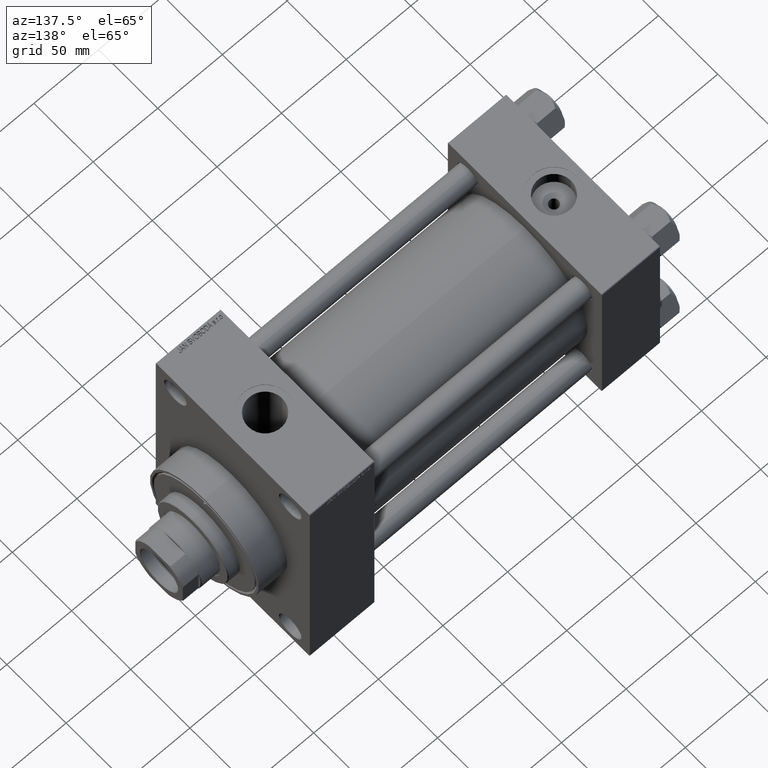
[diagram: clean part render]
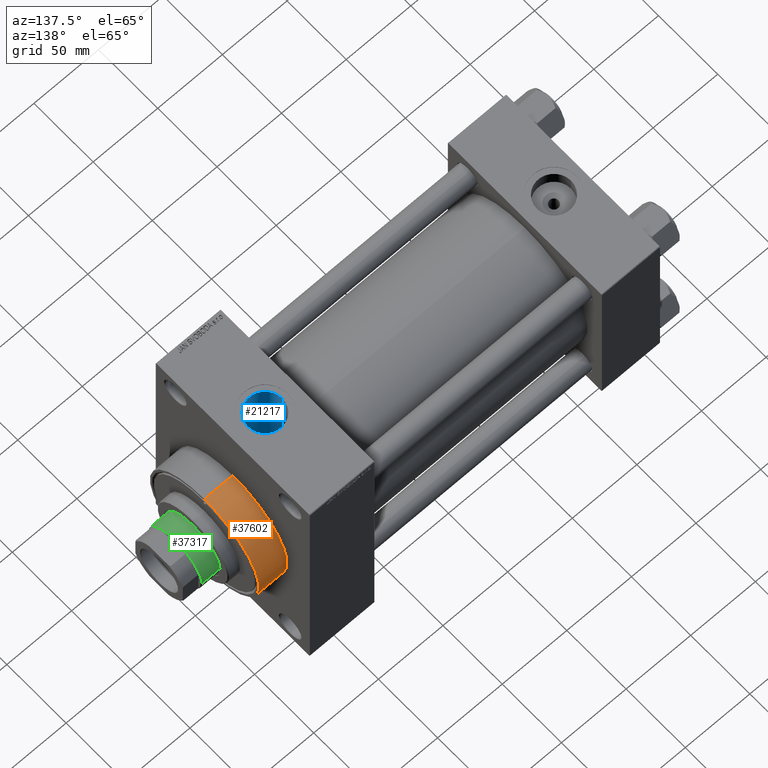
[diagram: same view with three faces highlighted in distinct colors, each labeled with its STEP entity id]
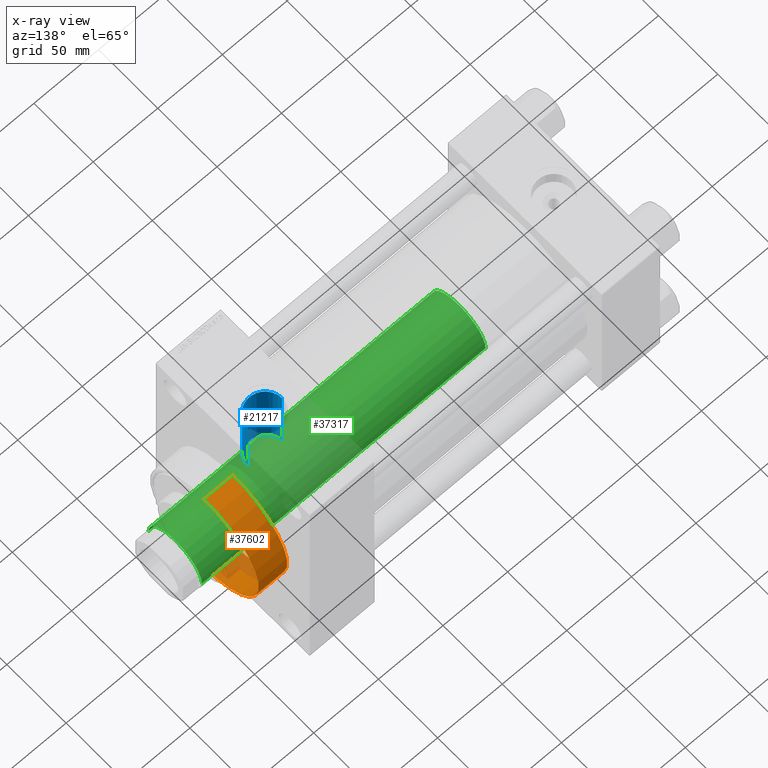
[diagram: x-ray of the same camera — body ghosted, the three highlighted faces saturated]
A machine part, auxiliary view with three faces highlighted in distinct colors.
The next image is the same camera in x-ray (body ghosted, the three faces saturated) — at least one of them is partly hidden behind the body in this view.
Their STEP definitions:

[orange] entity #37602 — the highlighted cylindrical surface (partial cylindrical patch) has radius 46 mm, axis along (-1, -0, -0).
#417 = VECTOR ( 'NONE', #38811, 1000.000000000000000 ) ;
#1079 = CARTESIAN_POINT ( 'NONE',  ( 293.0000000000000000, 0.000000000000000000, 46.00000000000000000 ) ) ;
#1939 = AXIS2_PLACEMENT_3D ( 'NONE', #6727, #14230, #10604 ) ;
#2532 = ORIENTED_EDGE ( 'NONE', *, *, #40158, .T. ) ;
#2699 = CARTESIAN_POINT ( 'NONE',  ( 293.0000000000000000, 5.633375276077824704E-15, -46.00000000000000000 ) ) ;
#2766 = AXIS2_PLACEMENT_3D ( 'NONE', #40722, #40959, #29585 ) ;
#6727 = CARTESIAN_POINT ( 'NONE',  ( 293.0000000000000000, 0.000000000000000000, 0.000000000000000000 ) ) ;
#8022 = EDGE_CURVE ( 'NONE', #31095, #12960, #8111, .T. ) ;
#8111 = LINE ( 'NONE', #1079, #38322 ) ;
#9341 = EDGE_CURVE ( 'NONE', #16402, #43832, #9979, .T. ) ;
#9979 = LINE ( 'NONE', #2699, #417 ) ;
#10604 = DIRECTION ( 'NONE',  ( 0.000000000000000000, 0.000000000000000000, 1.000000000000000000 ) ) ;
#12960 = VERTEX_POINT ( 'NONE', #32870 ) ;
#13008 = ORIENTED_EDGE ( 'NONE', *, *, #27832, .F. ) ;
#14230 = DIRECTION ( 'NONE',  ( -1.000000000000000000, -0.000000000000000000, -0.000000000000000000 ) ) ;
#14411 = DIRECTION ( 'NONE',  ( 1.000000000000000000, 0.000000000000000000, 0.000000000000000000 ) ) ;
#16402 = VERTEX_POINT ( 'NONE', #26064 ) ;
#16772 = CARTESIAN_POINT ( 'NONE',  ( 293.0000000000000000, 0.000000000000000000, 46.00000000000000000 ) ) ;
#17180 = CIRCLE ( 'NONE', #38820, 46.00000000000000000 ) ;
#25579 = DIRECTION ( 'NONE',  ( 0.000000000000000000, 0.000000000000000000, -1.000000000000000000 ) ) ;
#26064 = CARTESIAN_POINT ( 'NONE',  ( 293.0000000000000000, 5.633375276077824704E-15, -46.00000000000000000 ) ) ;
#27596 = ORIENTED_EDGE ( 'NONE', *, *, #9341, .T. ) ;
#27832 = EDGE_CURVE ( 'NONE', #16402, #31095, #17180, .T. ) ;
#29585 = DIRECTION ( 'NONE',  ( 0.000000000000000000, 0.000000000000000000, -1.000000000000000000 ) ) ;
#29643 = ORIENTED_EDGE ( 'NONE', *, *, #8022, .F. ) ;
#29741 = CYLINDRICAL_SURFACE ( 'NONE', #1939, 46.00000000000000000 ) ;
#29868 = CIRCLE ( 'NONE', #2766, 46.00000000000000000 ) ;
#31095 = VERTEX_POINT ( 'NONE', #16772 ) ;
#32870 = CARTESIAN_POINT ( 'NONE',  ( 270.9999999999999432, 0.000000000000000000, 46.00000000000000000 ) ) ;
#36478 = CARTESIAN_POINT ( 'NONE',  ( 270.9999999999999432, 5.633375276077824704E-15, -46.00000000000000000 ) ) ;
#37602 = ADVANCED_FACE ( 'NONE', ( #44499 ), #29741, .T. ) ;
#38322 = VECTOR ( 'NONE', #45645, 1000.000000000000000 ) ;
#38811 = DIRECTION ( 'NONE',  ( -1.000000000000000000, -0.000000000000000000, -0.000000000000000000 ) ) ;
#38820 = AXIS2_PLACEMENT_3D ( 'NONE', #44189, #14411, #25579 ) ;
#40158 = EDGE_CURVE ( 'NONE', #43832, #12960, #29868, .T. ) ;
#40722 = CARTESIAN_POINT ( 'NONE',  ( 270.9999999999999432, 0.000000000000000000, 0.000000000000000000 ) ) ;
#40959 = DIRECTION ( 'NONE',  ( 1.000000000000000000, 0.000000000000000000, 0.000000000000000000 ) ) ;
#43347 = EDGE_LOOP ( 'NONE', ( #13008, #27596, #2532, #29643 ) ) ;
#43832 = VERTEX_POINT ( 'NONE', #36478 ) ;
#44189 = CARTESIAN_POINT ( 'NONE',  ( 293.0000000000000000, 0.000000000000000000, 0.000000000000000000 ) ) ;
#44499 = FACE_OUTER_BOUND ( 'NONE', #43347, .T. ) ;
#45645 = DIRECTION ( 'NONE',  ( -1.000000000000000000, -0.000000000000000000, -0.000000000000000000 ) ) ;

[blue] entity #21217 — the highlighted cylindrical surface (edge-blend (fillet) strip) has radius 13.22 mm, axis along (0, 0, -1).
#1 = CARTESIAN_POINT ( 'NONE',  ( 258.9325276923766523, -2.832175481623198543, 42.66183901135580925 ) ) ;
#108 = LINE ( 'NONE', #43531, #28411 ) ;
#769 = CARTESIAN_POINT ( 'NONE',  ( 247.7273020000270947, -13.11672920664986108, 35.66454747468237940 ) ) ;
#867 = CARTESIAN_POINT ( 'NONE',  ( 246.0000000000000000, 0.000000000000000000, 117.7999999999999545 ) ) ;
#911 = VERTEX_POINT ( 'NONE', #46916 ) ;
#1658 = DIRECTION ( 'NONE',  ( -0.000000000000000000, -0.000000000000000000, -1.000000000000000000 ) ) ;
#1843 = VECTOR ( 'NONE', #19423, 1000.000000000000000 ) ;
#3588 = CARTESIAN_POINT ( 'NONE',  ( 249.7399999999999523, -12.67993690836038212, 35.82204907595320975 ) ) ;
#3628 = CARTESIAN_POINT ( 'NONE',  ( 259.2200000000000273, -0.3557163794469079265, 42.75000000000001421 ) ) ;
#3897 = EDGE_CURVE ( 'NONE', #25655, #911, #21442, .T. ) ;
#4278 = EDGE_CURVE ( 'NONE', #43410, #26917, #18879, .T. ) ;
#4399 = CARTESIAN_POINT ( 'NONE',  ( 249.7399999999999523, -12.67993690836038212, 35.82204907595320975 ) ) ;
#4808 = DIRECTION ( 'NONE',  ( 0.000000000000000000, 0.000000000000000000, -1.000000000000000000 ) ) ;
#5351 = CARTESIAN_POINT ( 'NONE',  ( 237.6581883585390358, -10.26839900491646596, 36.58771021444269422 ) ) ;
#5441 = ORIENTED_EDGE ( 'NONE', *, *, #3897, .T. ) ;
#5587 = CARTESIAN_POINT ( 'NONE',  ( 243.1213861529209339, -12.91299555985390413, 35.73883275200963539 ) ) ;
#5831 = CARTESIAN_POINT ( 'NONE',  ( 244.6465934105188182, -13.15308097112492902, 35.65105309393388211 ) ) ;
#7023 = CARTESIAN_POINT ( 'NONE',  ( 249.7399999999999807, -12.67993690836037324, 40.82623788692757216 ) ) ;
#8124 = B_SPLINE_CURVE_WITH_KNOTS ( 'NONE', 3,
 ( #18433, #3628, #29084, #24763, #36111, #1, #47230, #29560, #9952, #17949, #14049, #39513, #36585, #32711, #25465, #35875, #40220, #28847, #17471, #32244, #43603, #7023 ),
 .UNSPECIFIED., .F., .F.,
 ( 4, 2, 2, 2, 2, 2, 2, 2, 2, 2, 4 ),
 ( 0.01702171439019717000, 0.01808348912762097749, 0.01914526386504478497, 0.02126881333989239647, 0.02233058807731623172, 0.02339236281474006349, 0.02551591228958781030, 0.02763946176443555711, 0.02976301123928330045, 0.03188656071413104726, 0.03401011018897879407 ),
 .UNSPECIFIED. ) ;
#9398 = LINE ( 'NONE', #20568, #34553 ) ;
#9464 = CARTESIAN_POINT ( 'NONE',  ( 237.2661982700707313, -9.937219993078512559, 36.67946192170870745 ) ) ;
#9952 = CARTESIAN_POINT ( 'NONE',  ( 258.2993960643596552, -4.860054019011680992, 42.47412520213218556 ) ) ;
#11820 = CARTESIAN_POINT ( 'NONE',  ( 249.7399999999999807, -12.67993690836037324, 40.82623788692757216 ) ) ;
#12147 = CARTESIAN_POINT ( 'NONE',  ( 246.1955284908291333, -13.22847384726379616, 35.62314322171079084 ) ) ;
#12871 = CARTESIAN_POINT ( 'NONE',  ( 234.6733780949269601, -6.836262114151392844, 37.38252047338828277 ) ) ;
#13341 = CARTESIAN_POINT ( 'NONE',  ( 232.7800000000000580, -0.5124923440507876959, 38.00000000000000711 ) ) ;
#13582 = CARTESIAN_POINT ( 'NONE',  ( 232.8096983583114934, -1.025007823581723709, 37.98963656081627249 ) ) ;
#14049 = CARTESIAN_POINT ( 'NONE',  ( 257.8678695714943387, -5.834913689629344979, 42.35109966501105561 ) ) ;
#14927 = EDGE_CURVE ( 'NONE', #43410, #23665, #9398, .T. ) ;
#15041 = EDGE_CURVE ( 'NONE', #25655, #40538, #108, .T. ) ;
#16278 = CARTESIAN_POINT ( 'NONE',  ( 239.7505307718751624, -11.69499031497648822, 36.15822628461806687 ) ) ;
#16456 = DIRECTION ( 'NONE',  ( 1.000000000000000000, 0.000000000000000000, 0.000000000000000000 ) ) ;
#17230 = CARTESIAN_POINT ( 'NONE',  ( 235.2318264884937946, -7.685914564966205731, 37.21712017253236127 ) ) ;
#17471 = CARTESIAN_POINT ( 'NONE',  ( 252.3650373963749587, -11.60846388096252113, 41.14496498017213355 ) ) ;
#17949 = CARTESIAN_POINT ( 'NONE',  ( 258.0198534454123092, -5.515287097378166692, 42.39402133541479856 ) ) ;
#18323 = EDGE_CURVE ( 'NONE', #23665, #40538, #8124, .T. ) ;
#18433 = CARTESIAN_POINT ( 'NONE',  ( 259.2200000000000273, 5.235365066362919533E-15, 42.75000000000000000 ) ) ;
#18879 = CIRCLE ( 'NONE', #35874, 13.22000000000000952 ) ;
#19208 = CARTESIAN_POINT ( 'NONE',  ( 249.2468141908903192, -12.82540410897823513, 35.77055802578577470 ) ) ;
#19423 = DIRECTION ( 'NONE',  ( 0.000000000000000000, 0.000000000000000000, -1.000000000000000000 ) ) ;
#20568 = CARTESIAN_POINT ( 'NONE',  ( 259.2200000000000273, 1.618983068472799179E-15, 117.7999999999999545 ) ) ;
#21117 = CARTESIAN_POINT ( 'NONE',  ( 232.7800000000000011, 4.670198144118042837E-15, 38.00000000000000000 ) ) ;
#21217 = ADVANCED_FACE ( 'NONE', ( #41322 ), #34063, .F. ) ;
#21442 = B_SPLINE_CURVE_WITH_KNOTS ( 'NONE', 3,
 ( #4399, #19208, #37830, #769, #45322, #12147, #28127, #31049, #5831, #35632, #38556, #5587, #46034, #23802, #24762, #16278, #24520, #5351, #9464, #35146, #39268, #42889, #17230, #12871, #27659, #31997, #31284, #43135, #38785, #13582, #13341, #21117 ),
 .UNSPECIFIED., .F., .F.,
 ( 4, 2, 2, 2, 2, 2, 2, 2, 2, 2, 2, 2, 2, 2, 2, 4 ),
 ( 0.01705422015311720829, 0.01859208991726072138, 0.02012995968140423447, 0.02166782944554774409, 0.02243676432761954401, 0.02320569920969134045, 0.02474356897383493681, 0.02628143873797853317, 0.02935717826626572588, 0.03089504803040928754, 0.03243291779455285267, 0.03397078755869641781, 0.03550865732283998294, 0.03858439685112714790, 0.04012226661527073385, 0.04166013637941431286 ),
 .UNSPECIFIED. ) ;
#23665 = VERTEX_POINT ( 'NONE', #26085 ) ;
#23802 = CARTESIAN_POINT ( 'NONE',  ( 241.6470234235080454, -12.49324744184128733, 35.88793482582379113 ) ) ;
#23864 = ORIENTED_EDGE ( 'NONE', *, *, #15041, .F. ) ;
#24262 = ORIENTED_EDGE ( 'NONE', *, *, #32379, .F. ) ;
#24520 = CARTESIAN_POINT ( 'NONE',  ( 238.8755652418721525, -11.18215487821174925, 36.32301804256497491 ) ) ;
#24706 = CARTESIAN_POINT ( 'NONE',  ( 259.2200000000000273, 1.618983068472796024E-15, 94.79999999999996874 ) ) ;
#24762 = CARTESIAN_POINT ( 'NONE',  ( 241.1651837322211520, -12.31495098171281022, 35.94981938685187117 ) ) ;
#24763 = CARTESIAN_POINT ( 'NONE',  ( 259.1474619350561284, -1.428652546488349495, 42.72761509841831185 ) ) ;
#25465 = CARTESIAN_POINT ( 'NONE',  ( 255.6852196200359799, -9.025364359016275984, 41.78941323369599559 ) ) ;
#25655 = VERTEX_POINT ( 'NONE', #3588 ) ;
#26085 = CARTESIAN_POINT ( 'NONE',  ( 259.2200000000000273, 5.235365066362919533E-15, 42.75000000000000000 ) ) ;
#26801 = DIRECTION ( 'NONE',  ( 0.000000000000000000, 0.000000000000000000, -1.000000000000000000 ) ) ;
#26915 = CARTESIAN_POINT ( 'NONE',  ( 232.7800000000000011, 0.000000000000000000, 117.7999999999999545 ) ) ;
#26917 = VERTEX_POINT ( 'NONE', #45177 ) ;
#27659 = CARTESIAN_POINT ( 'NONE',  ( 234.4152396125651308, -6.389315783911302837, 37.46185808708516163 ) ) ;
#28127 = CARTESIAN_POINT ( 'NONE',  ( 245.6814230918163844, -13.22630302104230182, 35.62395438639612877 ) ) ;
#28411 = VECTOR ( 'NONE', #43064, 1000.000000000000000 ) ;
#28847 = CARTESIAN_POINT ( 'NONE',  ( 252.9822741085591247, -11.24766306689394035, 41.24590971077732604 ) ) ;
#29084 = CARTESIAN_POINT ( 'NONE',  ( 259.2055487969409455, -0.7143419376948718647, 42.74552439370961565 ) ) ;
#29369 = AXIS2_PLACEMENT_3D ( 'NONE', #867, #26801, #42290 ) ;
#29560 = CARTESIAN_POINT ( 'NONE',  ( 258.4260137807291926, -4.526382623994729570, 42.51103856060493058 ) ) ;
#31049 = CARTESIAN_POINT ( 'NONE',  ( 244.9061800254222590, -13.17721531947966263, 35.64212817518318133 ) ) ;
#31284 = CARTESIAN_POINT ( 'NONE',  ( 233.3777378405983711, -4.062146891642626656, 37.79554239058285248 ) ) ;
#31997 = CARTESIAN_POINT ( 'NONE',  ( 233.7266675305089620, -5.017990412168519043, 37.67859395355886676 ) ) ;
#32244 = CARTESIAN_POINT ( 'NONE',  ( 251.0881855045064981, -12.22213168823642171, 40.96686556097023413 ) ) ;
#32379 = EDGE_CURVE ( 'NONE', #26917, #911, #45536, .T. ) ;
#32458 = ORIENTED_EDGE ( 'NONE', *, *, #14927, .T. ) ;
#32711 = CARTESIAN_POINT ( 'NONE',  ( 256.1575723231069901, -8.490431257591517067, 41.90230994099357531 ) ) ;
#34063 = CYLINDRICAL_SURFACE ( 'NONE', #29369, 13.21999999999998110 ) ;
#34553 = VECTOR ( 'NONE', #4808, 1000.000000000000000 ) ;
#35146 = CARTESIAN_POINT ( 'NONE',  ( 236.5277665390036077, -9.236039579220969742, 36.86226852688237443 ) ) ;
#35632 = CARTESIAN_POINT ( 'NONE',  ( 244.1333413548220790, -13.09010442784175154, 35.67422447380825190 ) ) ;
#35874 = AXIS2_PLACEMENT_3D ( 'NONE', #46701, #1658, #16456 ) ;
#35875 = CARTESIAN_POINT ( 'NONE',  ( 254.6754924569602565, -9.999825575006527245, 41.56700312386077201 ) ) ;
#36111 = CARTESIAN_POINT ( 'NONE',  ( 259.1041229325396671, -1.782171368608852724, 42.71427362908443115 ) ) ;
#36585 = CARTESIAN_POINT ( 'NONE',  ( 257.0015928053664425, -7.364010740346977002, 42.11487085516268536 ) ) ;
#37830 = CARTESIAN_POINT ( 'NONE',  ( 248.7396828457914921, -12.94319493727706849, 35.72789157605162558 ) ) ;
#38556 = CARTESIAN_POINT ( 'NONE',  ( 243.8788164647795327, -13.05123934391902374, 35.68847932861488914 ) ) ;
#38785 = CARTESIAN_POINT ( 'NONE',  ( 232.9297342754260001, -2.050085931408923479, 37.94812610307854328 ) ) ;
#39203 = EDGE_LOOP ( 'NONE', ( #40907, #32458, #40626, #23864, #5441, #24262 ) ) ;
#39268 = CARTESIAN_POINT ( 'NONE',  ( 236.1815366388301243, -8.866866661621767065, 36.95316935884813603 ) ) ;
#39513 = CARTESIAN_POINT ( 'NONE',  ( 257.3763861193419302, -6.770732795594980757, 42.21512903942318218 ) ) ;
#40220 = CARTESIAN_POINT ( 'NONE',  ( 254.1351602650894677, -10.44419664956251381, 41.45664902860857381 ) ) ;
#40538 = VERTEX_POINT ( 'NONE', #11820 ) ;
#40626 = ORIENTED_EDGE ( 'NONE', *, *, #18323, .T. ) ;
#40907 = ORIENTED_EDGE ( 'NONE', *, *, #4278, .F. ) ;
#41322 = FACE_OUTER_BOUND ( 'NONE', #39203, .T. ) ;
#42290 = DIRECTION ( 'NONE',  ( -1.000000000000000000, 0.000000000000000000, 0.000000000000000000 ) ) ;
#42889 = CARTESIAN_POINT ( 'NONE',  ( 235.5335653968728309, -8.091804117011154318, 37.13059057153026998 ) ) ;
#43064 = DIRECTION ( 'NONE',  ( -0.000000000000000000, -0.000000000000000000, 1.000000000000000000 ) ) ;
#43135 = CARTESIAN_POINT ( 'NONE',  ( 233.0208682072191095, -2.563995466671128209, 37.91671060019312733 ) ) ;
#43410 = VERTEX_POINT ( 'NONE', #24706 ) ;
#43531 = CARTESIAN_POINT ( 'NONE',  ( 249.7399999999999807, -12.67993690836037324, 117.7999999999999545 ) ) ;
#43603 = CARTESIAN_POINT ( 'NONE',  ( 250.4263400167579618, -12.47749807280257883, 40.88911195506443619 ) ) ;
#45177 = CARTESIAN_POINT ( 'NONE',  ( 232.7800000000000011, 0.000000000000000000, 94.79999999999996874 ) ) ;
#45322 = CARTESIAN_POINT ( 'NONE',  ( 247.2184681352996733, -13.17368919937492144, 35.64343931497820961 ) ) ;
#45536 = LINE ( 'NONE', #26915, #1843 ) ;
#46034 = CARTESIAN_POINT ( 'NONE',  ( 242.6246063200816820, -12.79204261344249005, 35.78252008287734043 ) ) ;
#46701 = CARTESIAN_POINT ( 'NONE',  ( 246.0000000000000000, 0.000000000000000000, 94.79999999999996874 ) ) ;
#46916 = CARTESIAN_POINT ( 'NONE',  ( 232.7800000000000011, 4.670198144118042837E-15, 38.00000000000000000 ) ) ;
#47230 = CARTESIAN_POINT ( 'NONE',  ( 258.7629584476919149, -3.518170577613233707, 42.61034067485235965 ) ) ;

[green] entity #37317 — the highlighted cylindrical surface (partial cylindrical patch) has radius 22.5 mm, axis along (-1, 0, 0).
#182 = DIRECTION ( 'NONE',  ( 1.000000000000000000, 0.000000000000000000, 0.000000000000000000 ) ) ;
#458 = CARTESIAN_POINT ( 'NONE',  ( 0.000000000000000000, 0.000000000000000000, 51.00000000000000000 ) ) ;
#3796 = EDGE_CURVE ( 'NONE', #15512, #39403, #15312, .T. ) ;
#4113 = VECTOR ( 'NONE', #19933, 1000.000000000000000 ) ;
#6979 = CARTESIAN_POINT ( 'NONE',  ( 22.50000000000000355, 2.755455298081545172E-15, 51.00000000000000000 ) ) ;
#7698 = DIRECTION ( 'NONE',  ( 0.000000000000000000, 0.000000000000000000, -1.000000000000000000 ) ) ;
#10487 = VECTOR ( 'NONE', #17774, 1000.000000000000000 ) ;
#10607 = CARTESIAN_POINT ( 'NONE',  ( 0.000000000000000000, 0.000000000000000000, 270.5000000000000000 ) ) ;
#10651 = AXIS2_PLACEMENT_3D ( 'NONE', #10607, #7698, #182 ) ;
#10959 = FACE_OUTER_BOUND ( 'NONE', #33031, .T. ) ;
#11954 = ORIENTED_EDGE ( 'NONE', *, *, #35852, .F. ) ;
#12927 = CARTESIAN_POINT ( 'NONE',  ( 22.50000000000000355, 2.755455298081545172E-15, 270.5000000000000000 ) ) ;
#13087 = ORIENTED_EDGE ( 'NONE', *, *, #34040, .T. ) ;
#15312 = LINE ( 'NONE', #29858, #4113 ) ;
#15512 = VERTEX_POINT ( 'NONE', #33244 ) ;
#15719 = DIRECTION ( 'NONE',  ( 0.000000000000000000, 0.000000000000000000, 1.000000000000000000 ) ) ;
#16777 = ORIENTED_EDGE ( 'NONE', *, *, #43488, .T. ) ;
#17189 = CARTESIAN_POINT ( 'NONE',  ( -22.50000000000000355, 0.000000000000000000, 51.00000000000000000 ) ) ;
#17774 = DIRECTION ( 'NONE',  ( -0.000000000000000000, -0.000000000000000000, -1.000000000000000000 ) ) ;
#19933 = DIRECTION ( 'NONE',  ( -0.000000000000000000, -0.000000000000000000, -1.000000000000000000 ) ) ;
#21414 = CARTESIAN_POINT ( 'NONE',  ( 22.50000000000000355, 2.755455298081545172E-15, 271.0000000000000000 ) ) ;
#22929 = AXIS2_PLACEMENT_3D ( 'NONE', #29386, #25524, #28673 ) ;
#25055 = CYLINDRICAL_SURFACE ( 'NONE', #22929, 22.50000000000000355 ) ;
#25150 = AXIS2_PLACEMENT_3D ( 'NONE', #458, #15719, #37047 ) ;
#25524 = DIRECTION ( 'NONE',  ( -0.000000000000000000, -0.000000000000000000, -1.000000000000000000 ) ) ;
#28673 = DIRECTION ( 'NONE',  ( -1.000000000000000000, 0.000000000000000000, 0.000000000000000000 ) ) ;
#29386 = CARTESIAN_POINT ( 'NONE',  ( 0.000000000000000000, 0.000000000000000000, 271.0000000000000000 ) ) ;
#29858 = CARTESIAN_POINT ( 'NONE',  ( -22.50000000000000355, 0.000000000000000000, 271.0000000000000000 ) ) ;
#33017 = ORIENTED_EDGE ( 'NONE', *, *, #3796, .T. ) ;
#33031 = EDGE_LOOP ( 'NONE', ( #11954, #16777, #33017, #13087 ) ) ;
#33244 = CARTESIAN_POINT ( 'NONE',  ( -22.50000000000000355, 0.000000000000000000, 270.5000000000000000 ) ) ;
#34040 = EDGE_CURVE ( 'NONE', #39403, #44306, #43676, .T. ) ;
#35804 = VERTEX_POINT ( 'NONE', #12927 ) ;
#35852 = EDGE_CURVE ( 'NONE', #35804, #44306, #45625, .T. ) ;
#37047 = DIRECTION ( 'NONE',  ( 1.000000000000000000, 0.000000000000000000, 0.000000000000000000 ) ) ;
#37317 = ADVANCED_FACE ( 'NONE', ( #10959 ), #25055, .T. ) ;
#37736 = CIRCLE ( 'NONE', #10651, 22.50000000000000355 ) ;
#39403 = VERTEX_POINT ( 'NONE', #17189 ) ;
#43488 = EDGE_CURVE ( 'NONE', #35804, #15512, #37736, .T. ) ;
#43676 = CIRCLE ( 'NONE', #25150, 22.50000000000000355 ) ;
#44306 = VERTEX_POINT ( 'NONE', #6979 ) ;
#45625 = LINE ( 'NONE', #21414, #10487 ) ;